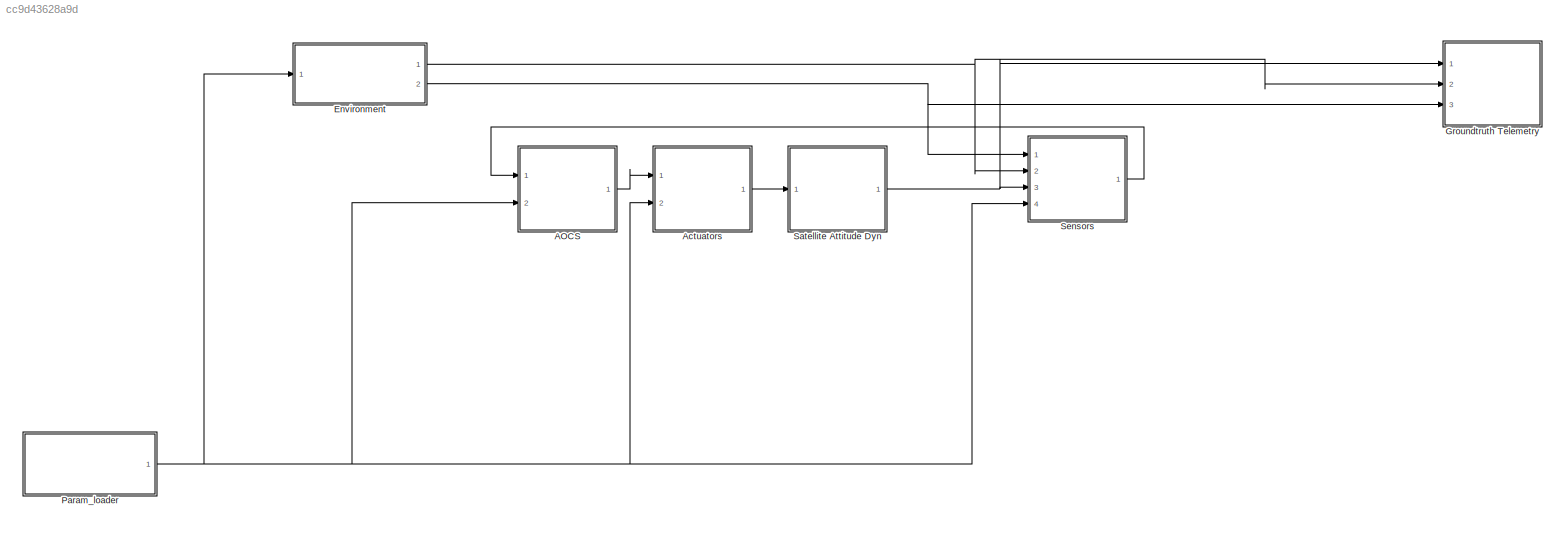
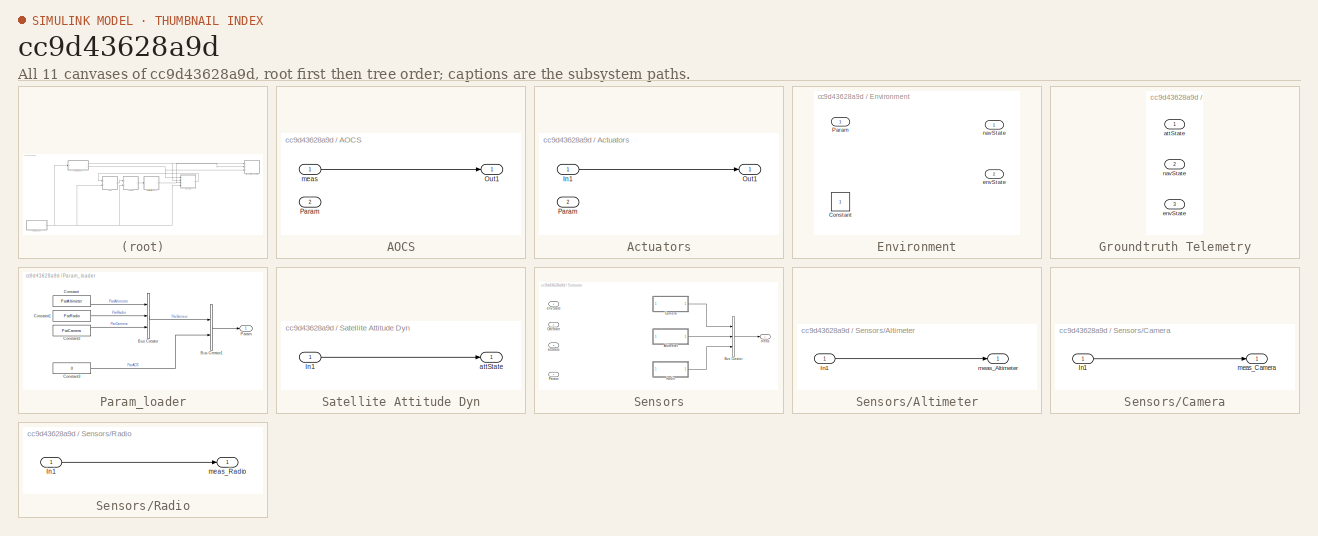
[diagram: thumbnail index - all 11 canvases of the model, root first then tree order]
MODEL slx_cc9d43628a9d
KIND model
CONFIG AbsTol = auto
CONFIG EnableMultiTasking = off
CONFIG FixedStep = auto
CONFIG MaxStep = auto
CONFIG MinStep = auto
CONFIG RelTol = 1e-3
CONFIG SampleTimeConstraint = Unconstrained
CONFIG Solver = VariableStepAuto
CONFIG SolverName = VariableStepAuto
CONFIG StartTime = 0.0
CONFIG StopTime = 10.0
BLOCK [SubSystem] AOCS
  Ports = [2, 1]
BLOCK [Outport] AOCS/Out1
BLOCK [Inport] AOCS/Param
  Port = 2
BLOCK [Inport] AOCS/meas
BLOCK [SubSystem] Actuators
  Ports = [2, 1]
BLOCK [Inport] Actuators/In1
BLOCK [Outport] Actuators/Out1
BLOCK [Inport] Actuators/Param
  Port = 2
BLOCK [SubSystem] Environment
  Ports = [1, 2]
BLOCK [Constant] Environment/Constant
BLOCK [Inport] Environment/Param
BLOCK [Outport] Environment/envState
  Port = 2
BLOCK [Outport] Environment/navState
BLOCK [SubSystem] Groundtruth Telemetry
  Ports = [3]
BLOCK [Inport] Groundtruth Telemetry/attState
BLOCK [Inport] Groundtruth Telemetry/envState
  Port = 3
BLOCK [Inport] Groundtruth Telemetry/navState
  Port = 2
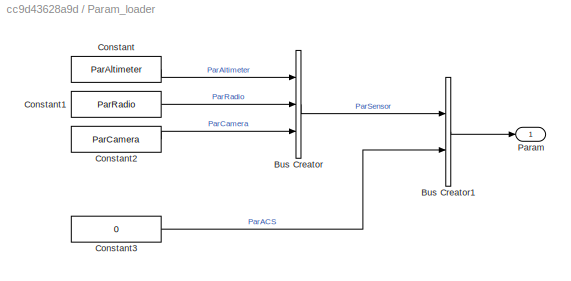
BLOCK [SubSystem] Param_loader
  Ports = [0, 1]
BLOCK [BusCreator] Param_loader/Bus Creator
  DisplayOption = bar
  InheritFromInputs = on
  Inputs = 3
  Ports = [3, 1]
BLOCK [BusCreator] Param_loader/Bus Creator1
  DisplayOption = bar
  InheritFromInputs = on
  Inputs = 2
  Ports = [2, 1]
BLOCK [Constant] Param_loader/Constant
  Value = ParAltimeter
BLOCK [Constant] Param_loader/Constant1
  Value = ParRadio
BLOCK [Constant] Param_loader/Constant2
  Value = ParCamera
BLOCK [Constant] Param_loader/Constant3
  Value = 0
BLOCK [Outport] Param_loader/Param
BLOCK [SubSystem] Satellite Attitude Dyn
  Ports = [1, 1]
BLOCK [Inport] Satellite Attitude Dyn/In1
BLOCK [Outport] Satellite Attitude Dyn/attState
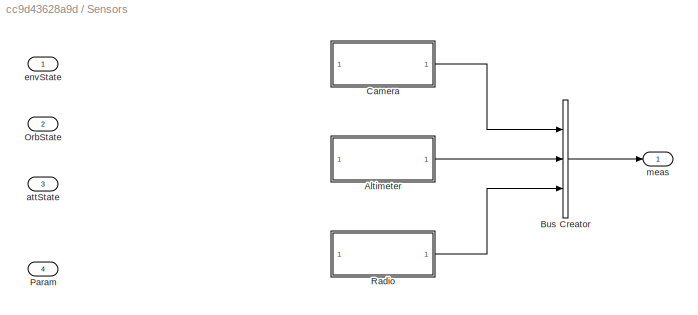
BLOCK [SubSystem] Sensors
  Ports = [4, 1]
BLOCK [SubSystem] Sensors/Altimeter
  Ports = [1, 1]
BLOCK [Inport] Sensors/Altimeter/In1
BLOCK [Outport] Sensors/Altimeter/meas_Altimeter
BLOCK [BusCreator] Sensors/Bus Creator
  DisplayOption = bar
  InheritFromInputs = on
  Inputs = 3
  Ports = [3, 1]
BLOCK [SubSystem] Sensors/Camera
  Ports = [1, 1]
BLOCK [Inport] Sensors/Camera/In1
BLOCK [Outport] Sensors/Camera/meas_Camera
BLOCK [Inport] Sensors/OrbState
  Port = 2
BLOCK [Inport] Sensors/Param
  Port = 4
BLOCK [SubSystem] Sensors/Radio
  Ports = [1, 1]
BLOCK [Inport] Sensors/Radio/In1
BLOCK [Outport] Sensors/Radio/meas_Radio
BLOCK [Inport] Sensors/attState
  Port = 3
BLOCK [Inport] Sensors/envState
BLOCK [Outport] Sensors/meas
LINE AOCS/meas:1 -> AOCS/Out1:1
LINE AOCS:1 -> Actuators:1
LINE Actuators/In1:1 -> Actuators/Out1:1
LINE Actuators:1 -> Satellite Attitude Dyn:1
NET Environment:1 -> Groundtruth Telemetry:2, Sensors:2
NET Environment:2 -> Groundtruth Telemetry:3, Sensors:1
LINE Param_loader/Bus Creator1:1 -> Param_loader/Param:1
LINE Param_loader/Bus Creator:1 -> Param_loader/Bus Creator1:1
LINE Param_loader/Constant1:1 -> Param_loader/Bus Creator:2
LINE Param_loader/Constant2:1 -> Param_loader/Bus Creator:3
LINE Param_loader/Constant3:1 -> Param_loader/Bus Creator1:2
LINE Param_loader/Constant:1 -> Param_loader/Bus Creator:1
NET Param_loader:1 -> AOCS:2, Actuators:2, Environment:1, Sensors:4
LINE Satellite Attitude Dyn/In1:1 -> Satellite Attitude Dyn/attState:1
NET Satellite Attitude Dyn:1 -> Groundtruth Telemetry:1, Sensors:3
LINE Sensors/Altimeter/In1:1 -> Sensors/Altimeter/meas_Altimeter:1
LINE Sensors/Altimeter:1 -> Sensors/Bus Creator:2
LINE Sensors/Bus Creator:1 -> Sensors/meas:1
LINE Sensors/Camera/In1:1 -> Sensors/Camera/meas_Camera:1
LINE Sensors/Camera:1 -> Sensors/Bus Creator:1
LINE Sensors/Radio/In1:1 -> Sensors/Radio/meas_Radio:1
LINE Sensors/Radio:1 -> Sensors/Bus Creator:3
LINE Sensors:1 -> AOCS:1
note: NET lines group one-source signal fan-out (src -> all destinations, sorted); 1:1 wires keep LINE
